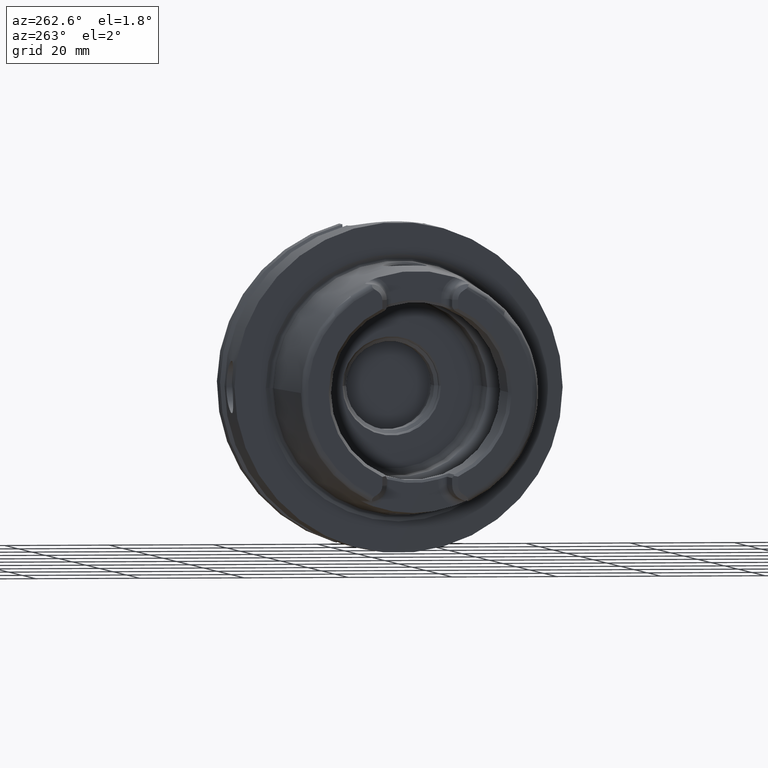
[diagram: clean part render]
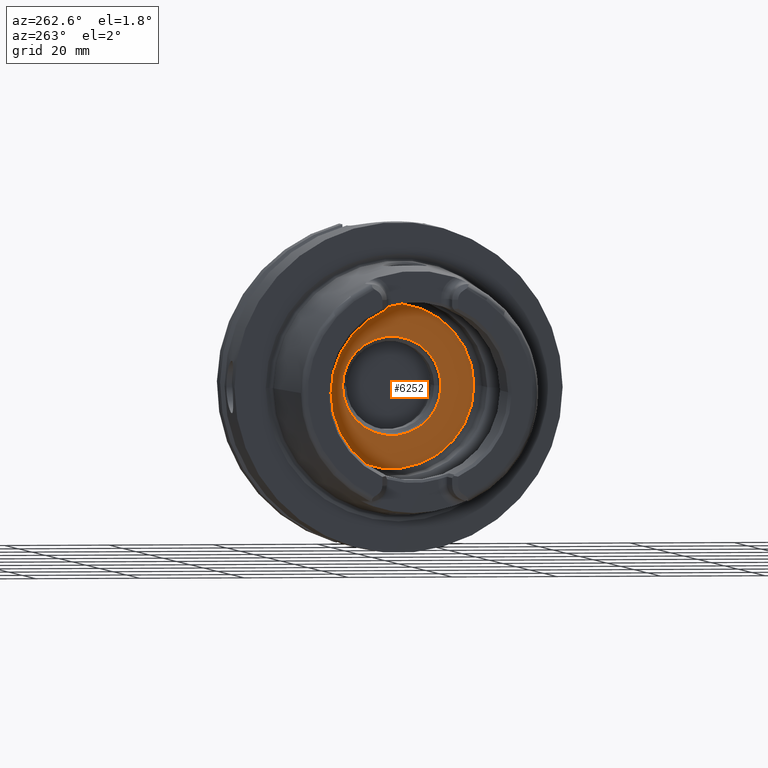
[diagram: same view with one face highlighted and labeled with its STEP entity id]
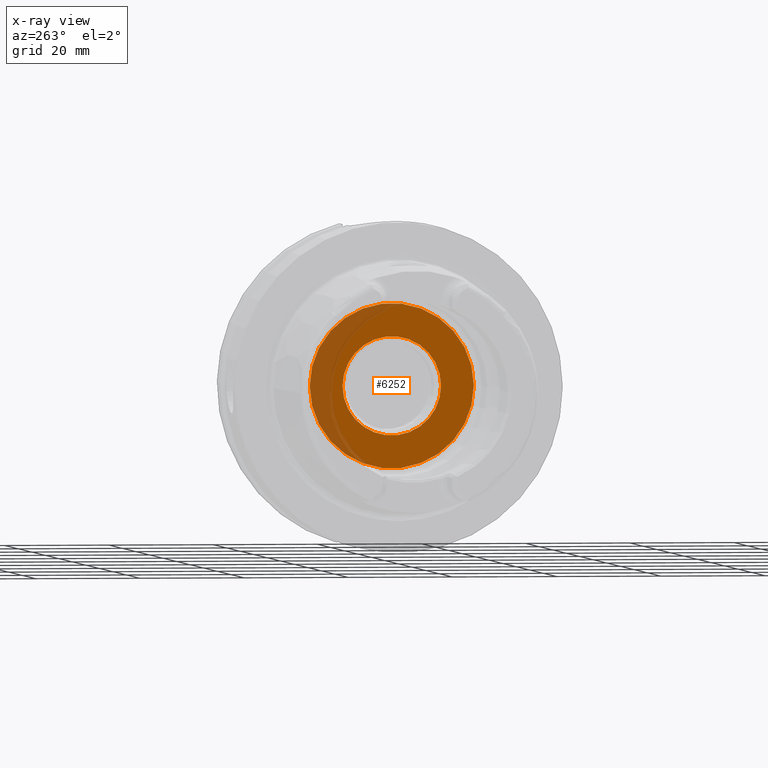
[diagram: x-ray of the same camera — body ghosted, the highlighted face saturated]
A machine part, auxiliary view. The second image highlights one B-rep face of the part: STEP entity #6252.
The next image is the same camera in x-ray: the body ghosted, the highlighted face saturated — about 24% of this face is hidden behind the body in this view.
In plain terms, the highlighted planar face has unit normal (1, 0, 0).
Its self-contained STEP definition (entity closure, byte-faithful):
#2511=CARTESIAN_POINT('',(1.E1,0.E0,0.E0));
#2512=DIRECTION('',(1.E0,0.E0,0.E0));
#2513=DIRECTION('',(0.E0,1.E0,0.E0));
#2514=AXIS2_PLACEMENT_3D('',#2511,#2512,#2513);
#2521=CARTESIAN_POINT('',(1.E1,0.E0,0.E0));
#2522=DIRECTION('',(-1.E0,0.E0,0.E0));
#2523=DIRECTION('',(0.E0,1.E0,0.E0));
#2524=AXIS2_PLACEMENT_3D('',#2521,#2522,#2523);
#2531=CARTESIAN_POINT('',(1.E1,0.E0,0.E0));
#2532=DIRECTION('',(1.E0,0.E0,0.E0));
#2533=DIRECTION('',(0.E0,1.E0,0.E0));
#2534=AXIS2_PLACEMENT_3D('',#2531,#2532,#2533);
#2536=CARTESIAN_POINT('',(1.E1,0.E0,0.E0));
#2537=DIRECTION('',(1.E0,0.E0,0.E0));
#2538=DIRECTION('',(0.E0,-1.E0,0.E0));
#2539=AXIS2_PLACEMENT_3D('',#2536,#2537,#2538);
#2739=CARTESIAN_POINT('',(1.E1,1.575E1,0.E0));
#2741=VERTEX_POINT('',#2739);
#2743=CARTESIAN_POINT('',(1.E1,-1.575E1,0.E0));
#2745=VERTEX_POINT('',#2743);
#2990=CARTESIAN_POINT('',(1.E1,9.451175134595E0,0.E0));
#2991=CARTESIAN_POINT('',(1.E1,-9.451175134595E0,0.E0));
#2992=VERTEX_POINT('',#2990);
#2993=VERTEX_POINT('',#2991);
#6237=CARTESIAN_POINT('',(1.E1,0.E0,0.E0));
#6238=DIRECTION('',(1.E0,0.E0,0.E0));
#6239=DIRECTION('',(0.E0,-1.E0,0.E0));
#6240=AXIS2_PLACEMENT_3D('',#6237,#6238,#6239);
#6241=PLANE('',#6240);
#6242=ORIENTED_EDGE('',*,*,#6219,.T.);
#6243=ORIENTED_EDGE('',*,*,#6230,.F.);
#6244=EDGE_LOOP('',(#6242,#6243));
#6245=FACE_OUTER_BOUND('',#6244,.F.);
#6247=ORIENTED_EDGE('',*,*,#6246,.F.);
#6249=ORIENTED_EDGE('',*,*,#6248,.F.);
#6250=EDGE_LOOP('',(#6247,#6249));
#6251=FACE_BOUND('',#6250,.F.);
#6252=ADVANCED_FACE('',(#6245,#6251),#6241,.F.);
#2515=CIRCLE('',#2514,1.575E1);
#2525=CIRCLE('',#2524,1.575E1);
#2535=CIRCLE('',#2534,9.451175134595E0);
#2540=CIRCLE('',#2539,9.451175134595E0);
#6219=EDGE_CURVE('',#2741,#2745,#2515,.T.);
#6230=EDGE_CURVE('',#2741,#2745,#2525,.T.);
#6246=EDGE_CURVE('',#2992,#2993,#2535,.T.);
#6248=EDGE_CURVE('',#2993,#2992,#2540,.T.);